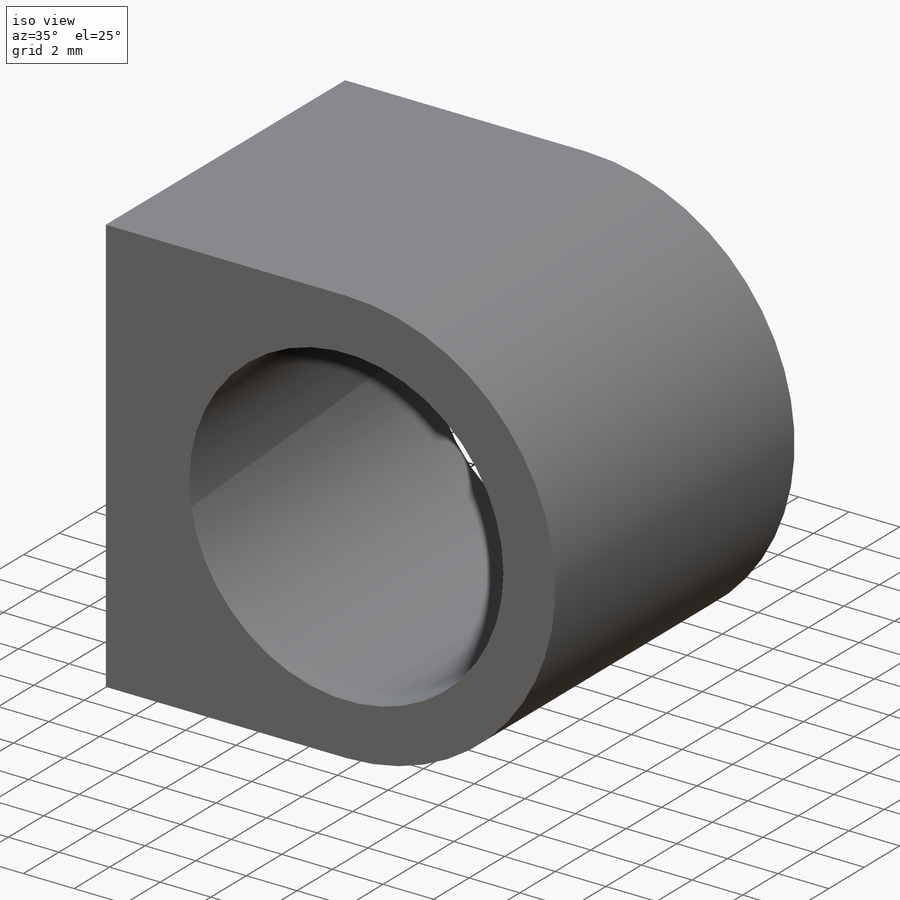
[diagram: iso view]
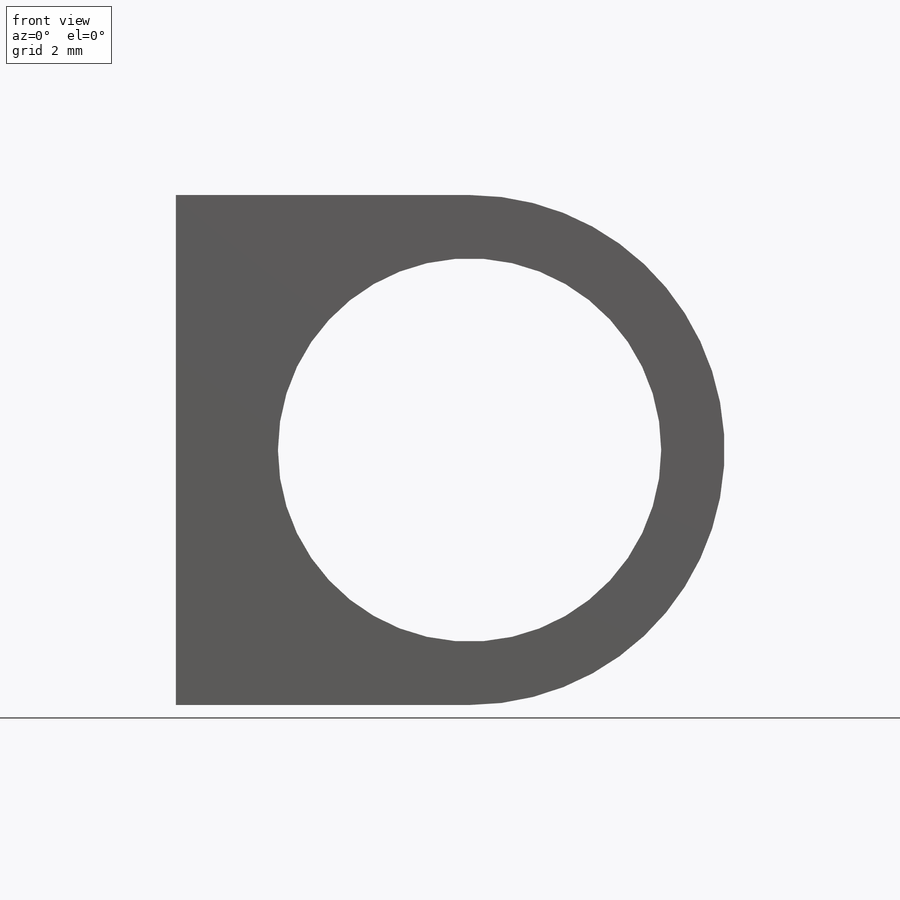
[diagram: front view]
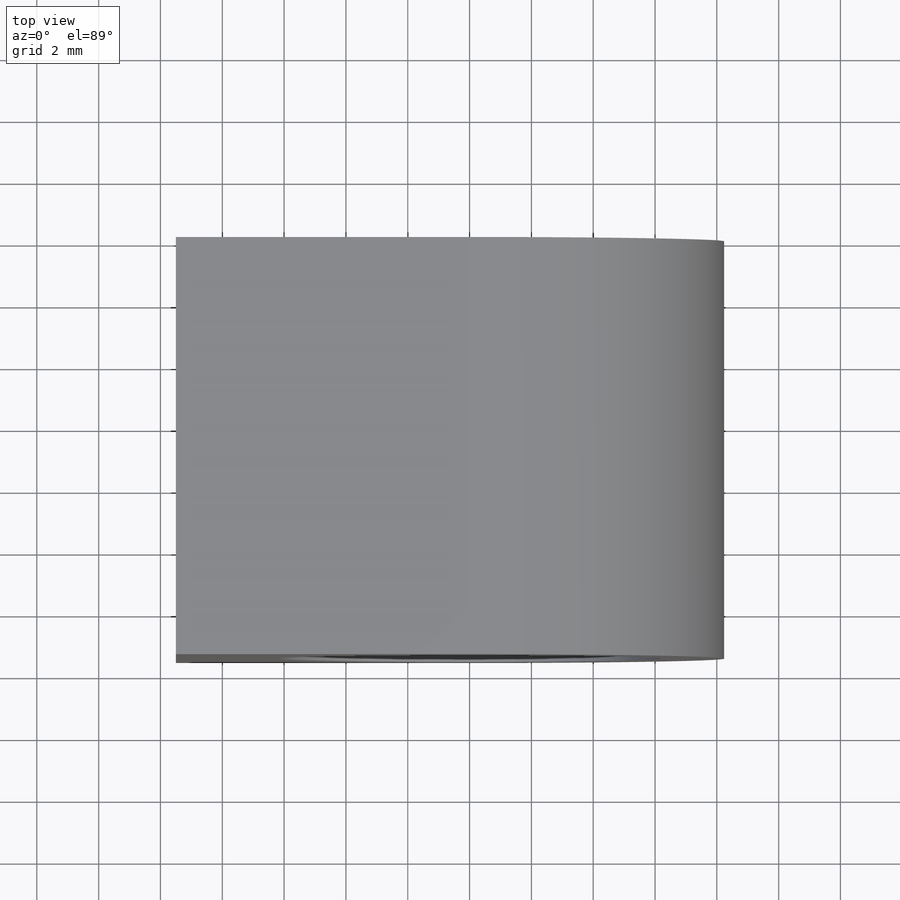
[diagram: top view]
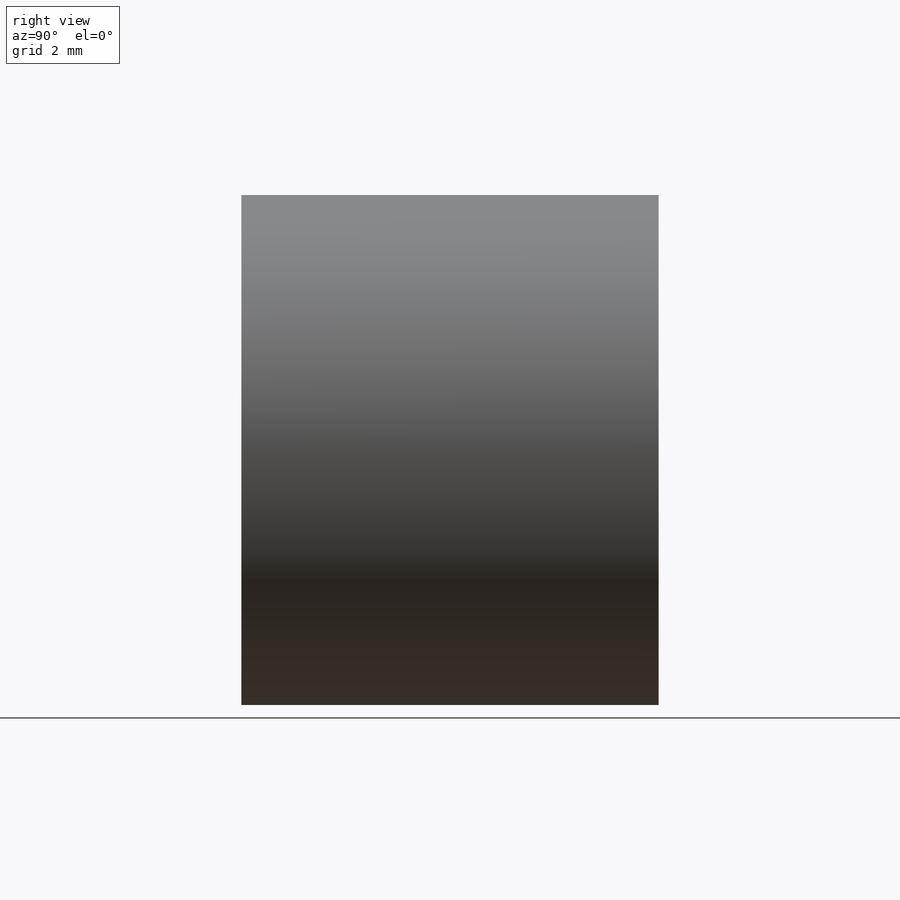
[diagram: right view]
SOLIDWORKS PART (.sldprt)
format: sldprt  version: not decoded by parser v0  size: 205,824 bytes
history: native  units: mm
features: sketch x3, material x1, extrude x1, hole x1 (+16 scaffold rows collapsed)
feature tree (22):
  scaffold x16  (default folders/planes/origin — collapsed)
  material  "Material <not specified>"
  sketch  "Sketch1"  dims[c1.D1=12.3mm c1.D2=15.0mm c2.D1=12.4mm c2.D3=9.5mm c2.D4=~5.759451mm c3.D4=120.0deg c3.D5=110.0mm c4.D5=60.0deg c4.D2=16.5mm]
  extrude  "Boss-Extrude1"  Depth=13.5mm
  hole  "Ø2.7 (2.7) Diameter Hole1"  Diameter=2.7mm Depth=4mm
  sketch  "Sketch5"  dims[c1.D1=2.5mm c1.D2=2.5mm c1.D3=2.5mm c2.D2=10.0mm c2.D3=8.5mm]
  sketch  "Sketch4"  dims[hole-wizard template sketch: 47 standard entries collapsed; hole parameters kept: c15.Hole Depth=4.0mm c15.D3=~14.816244mm c15.Drill Angle=118.0deg]
decode coverage: 5 of 5 modeling features carry decoded parameters
note: ~ marks probable driven/reference dimensions
note: suppression state not decoded; provenance and decode notes live in map.json
